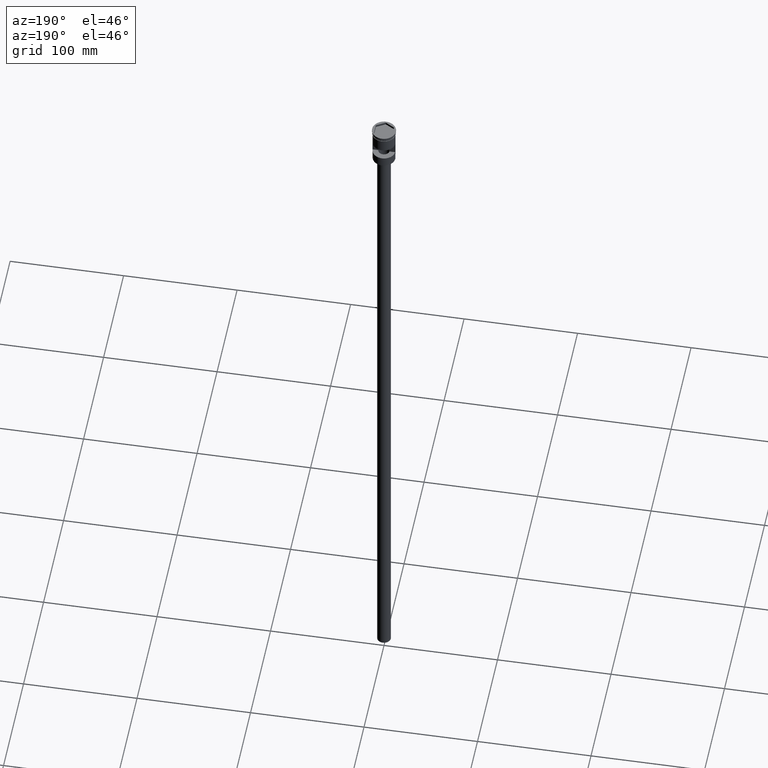
[diagram: clean part render]
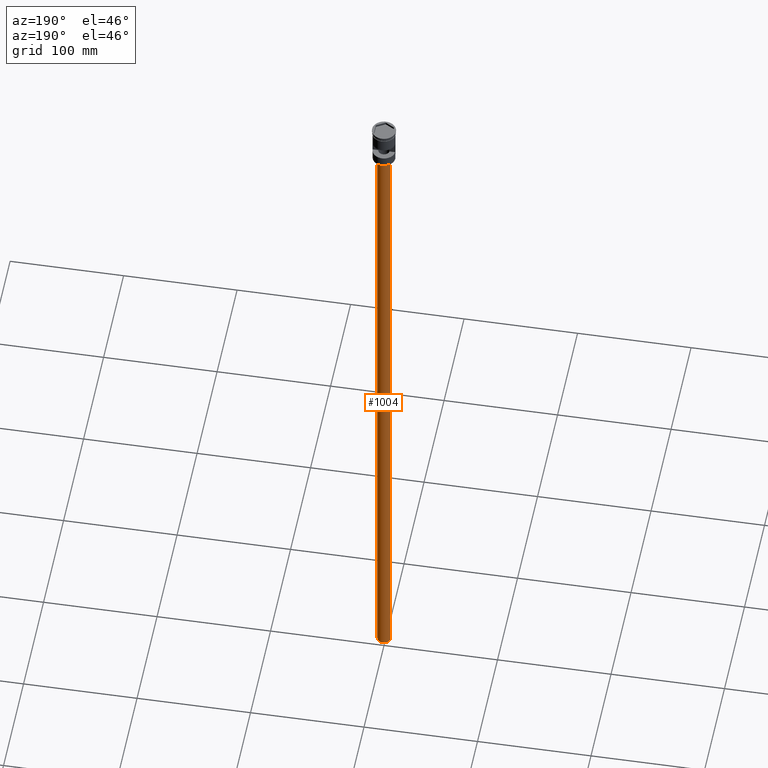
[diagram: same view with one face highlighted and labeled with its STEP entity id]
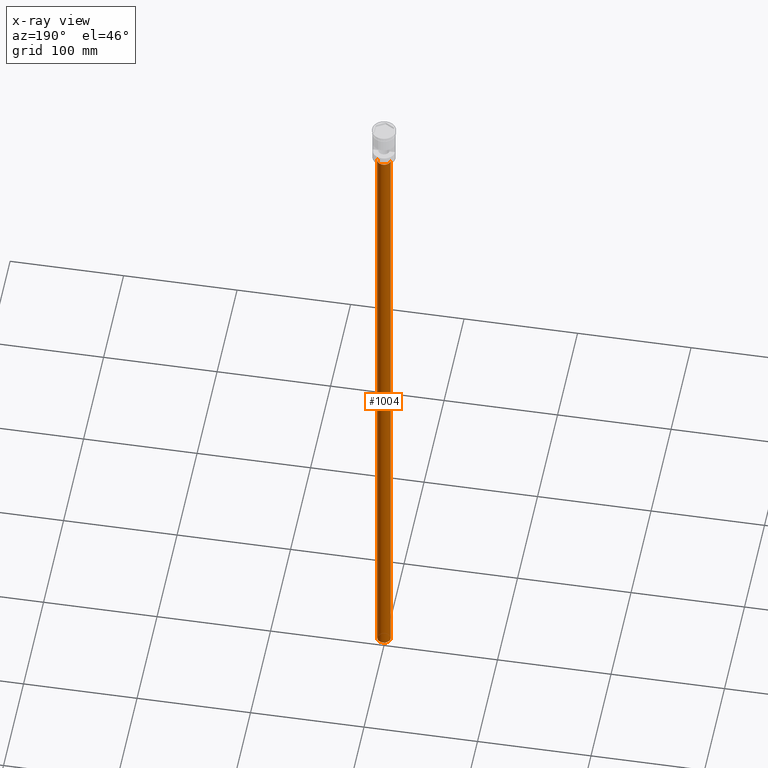
[diagram: x-ray of the same camera — body ghosted, the highlighted face saturated]
A machine part, auxiliary view. The second image highlights one B-rep face of the part: STEP entity #1004.
The next image is the same camera in x-ray: the body ghosted, the highlighted face saturated — about 0% of this face is hidden behind the body in this view.
In plain terms, the highlighted cylindrical surface (edge-blend (fillet) strip) has radius 6 mm, axis along (-0, -0, 1).
Its self-contained STEP definition (entity closure, byte-faithful):
#29 = CARTESIAN_POINT ( 'NONE',  ( 0.000000000000000000, 0.000000000000000000, -37.00000000000000000 ) ) ;
#39 = CARTESIAN_POINT ( 'NONE',  ( 6.000000000000000888, 0.000000000000000000, -634.0000000000000000 ) ) ;
#70 = EDGE_LOOP ( 'NONE', ( #1387, #904, #425, #98 ) ) ;
#98 = ORIENTED_EDGE ( 'NONE', *, *, #619, .F. ) ;
#109 = EDGE_CURVE ( 'NONE', #510, #778, #585, .T. ) ;
#224 = LINE ( 'NONE', #1112, #1469 ) ;
#264 = CARTESIAN_POINT ( 'NONE',  ( 0.000000000000000000, 0.000000000000000000, -634.0000000000000000 ) ) ;
#324 = CIRCLE ( 'NONE', #658, 6.000000000000000888 ) ;
#344 = DIRECTION ( 'NONE',  ( -0.000000000000000000, -0.000000000000000000, 1.000000000000000000 ) ) ;
#381 = EDGE_CURVE ( 'NONE', #778, #1113, #918, .T. ) ;
#392 = AXIS2_PLACEMENT_3D ( 'NONE', #29, #401, #912 ) ;
#401 = DIRECTION ( 'NONE',  ( 0.000000000000000000, 0.000000000000000000, -1.000000000000000000 ) ) ;
#425 = ORIENTED_EDGE ( 'NONE', *, *, #381, .T. ) ;
#454 = CARTESIAN_POINT ( 'NONE',  ( -6.000000000000000888, 7.347880794884120722E-16, -37.00000000000000000 ) ) ;
#510 = VERTEX_POINT ( 'NONE', #874 ) ;
#585 = LINE ( 'NONE', #1090, #732 ) ;
#619 = EDGE_CURVE ( 'NONE', #1255, #1113, #224, .T. ) ;
#658 = AXIS2_PLACEMENT_3D ( 'NONE', #264, #1258, #765 ) ;
#732 = VECTOR ( 'NONE', #1553, 1000.000000000000000 ) ;
#765 = DIRECTION ( 'NONE',  ( -1.000000000000000000, 0.000000000000000000, 0.000000000000000000 ) ) ;
#778 = VERTEX_POINT ( 'NONE', #454 ) ;
#848 = DIRECTION ( 'NONE',  ( 1.000000000000000000, 0.000000000000000000, 0.000000000000000000 ) ) ;
#874 = CARTESIAN_POINT ( 'NONE',  ( -6.000000000000000888, 7.347880794884120722E-16, -634.0000000000000000 ) ) ;
#904 = ORIENTED_EDGE ( 'NONE', *, *, #109, .T. ) ;
#912 = DIRECTION ( 'NONE',  ( -1.000000000000000000, 0.000000000000000000, 0.000000000000000000 ) ) ;
#918 = CIRCLE ( 'NONE', #392, 6.000000000000000888 ) ;
#962 = CARTESIAN_POINT ( 'NONE',  ( 0.000000000000000000, 0.000000000000000000, -634.0000000000000000 ) ) ;
#1004 = ADVANCED_FACE ( 'NONE', ( #1124 ), #1600, .T. ) ;
#1020 = CARTESIAN_POINT ( 'NONE',  ( 6.000000000000000888, 0.000000000000000000, -37.00000000000000000 ) ) ;
#1090 = CARTESIAN_POINT ( 'NONE',  ( -6.000000000000000888, 7.347880794884120722E-16, -634.0000000000000000 ) ) ;
#1112 = CARTESIAN_POINT ( 'NONE',  ( 6.000000000000000888, 0.000000000000000000, -634.0000000000000000 ) ) ;
#1113 = VERTEX_POINT ( 'NONE', #1020 ) ;
#1124 = FACE_OUTER_BOUND ( 'NONE', #70, .T. ) ;
#1166 = EDGE_CURVE ( 'NONE', #510, #1255, #324, .T. ) ;
#1255 = VERTEX_POINT ( 'NONE', #39 ) ;
#1258 = DIRECTION ( 'NONE',  ( 0.000000000000000000, 0.000000000000000000, -1.000000000000000000 ) ) ;
#1387 = ORIENTED_EDGE ( 'NONE', *, *, #1166, .F. ) ;
#1469 = VECTOR ( 'NONE', #1502, 1000.000000000000000 ) ;
#1502 = DIRECTION ( 'NONE',  ( -0.000000000000000000, -0.000000000000000000, 1.000000000000000000 ) ) ;
#1553 = DIRECTION ( 'NONE',  ( -0.000000000000000000, -0.000000000000000000, 1.000000000000000000 ) ) ;
#1575 = AXIS2_PLACEMENT_3D ( 'NONE', #962, #344, #848 ) ;
#1600 = CYLINDRICAL_SURFACE ( 'NONE', #1575, 6.000000000000000888 ) ;